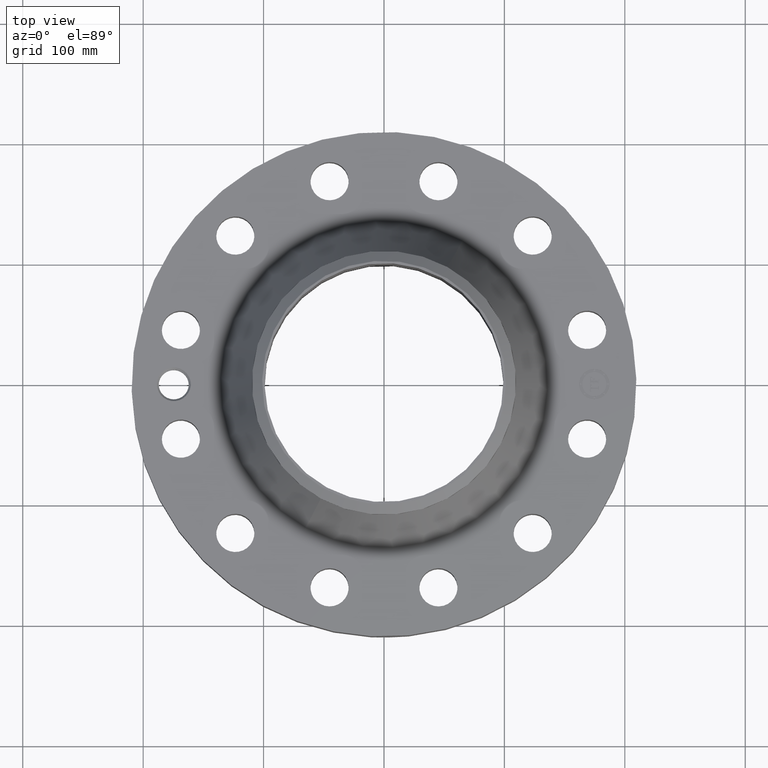
[diagram: clean part render]
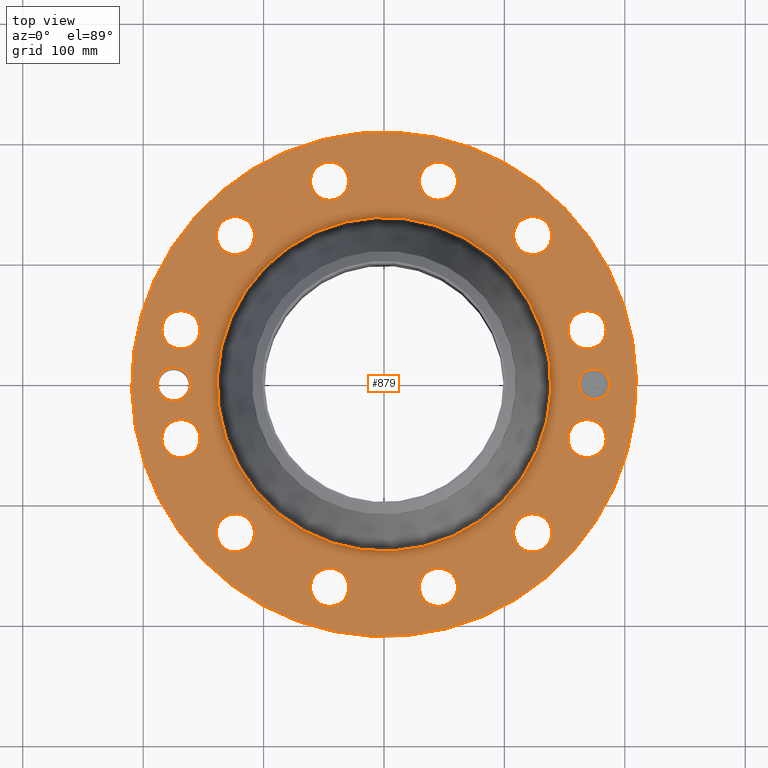
[diagram: same view with one face highlighted and labeled with its STEP entity id]
A machine part, top view. The second image highlights one B-rep face of the part: STEP entity #879.
In plain terms, the highlighted planar face has unit normal (0, 0, -1).
Its self-contained STEP definition (entity closure, byte-faithful):
#58=AXIS2_PLACEMENT_3D('Circle Axis2P3D',#56,#57,$) ;
#467=AXIS2_PLACEMENT_3D('Circle Axis2P3D',#465,#466,$) ;
#567=AXIS2_PLACEMENT_3D('Plane Axis2P3D',#564,#565,#566) ;
#603=AXIS2_PLACEMENT_3D('Circle Axis2P3D',#601,#602,$) ;
#610=AXIS2_PLACEMENT_3D('Circle Axis2P3D',#608,#609,$) ;
#617=AXIS2_PLACEMENT_3D('Circle Axis2P3D',#615,#616,$) ;
#629=AXIS2_PLACEMENT_3D('Circle Axis2P3D',#627,#628,$) ;
#638=AXIS2_PLACEMENT_3D('Circle Axis2P3D',#636,#637,$) ;
#647=AXIS2_PLACEMENT_3D('Circle Axis2P3D',#645,#646,$) ;
#656=AXIS2_PLACEMENT_3D('Circle Axis2P3D',#654,#655,$) ;
#665=AXIS2_PLACEMENT_3D('Circle Axis2P3D',#663,#664,$) ;
#674=AXIS2_PLACEMENT_3D('Circle Axis2P3D',#672,#673,$) ;
#683=AXIS2_PLACEMENT_3D('Circle Axis2P3D',#681,#682,$) ;
#692=AXIS2_PLACEMENT_3D('Circle Axis2P3D',#690,#691,$) ;
#701=AXIS2_PLACEMENT_3D('Circle Axis2P3D',#699,#700,$) ;
#710=AXIS2_PLACEMENT_3D('Circle Axis2P3D',#708,#709,$) ;
#719=AXIS2_PLACEMENT_3D('Circle Axis2P3D',#717,#718,$) ;
#728=AXIS2_PLACEMENT_3D('Circle Axis2P3D',#726,#727,$) ;
#737=AXIS2_PLACEMENT_3D('Circle Axis2P3D',#735,#736,$) ;
#746=AXIS2_PLACEMENT_3D('Circle Axis2P3D',#744,#745,$) ;
#755=AXIS2_PLACEMENT_3D('Circle Axis2P3D',#753,#754,$) ;
#764=AXIS2_PLACEMENT_3D('Circle Axis2P3D',#762,#763,$) ;
#773=AXIS2_PLACEMENT_3D('Circle Axis2P3D',#771,#772,$) ;
#782=AXIS2_PLACEMENT_3D('Circle Axis2P3D',#780,#781,$) ;
#791=AXIS2_PLACEMENT_3D('Circle Axis2P3D',#789,#790,$) ;
#800=AXIS2_PLACEMENT_3D('Circle Axis2P3D',#798,#799,$) ;
#809=AXIS2_PLACEMENT_3D('Circle Axis2P3D',#807,#808,$) ;
#818=AXIS2_PLACEMENT_3D('Circle Axis2P3D',#816,#817,$) ;
#827=AXIS2_PLACEMENT_3D('Circle Axis2P3D',#825,#826,$) ;
#836=AXIS2_PLACEMENT_3D('Circle Axis2P3D',#834,#835,$) ;
#845=AXIS2_PLACEMENT_3D('Circle Axis2P3D',#843,#844,$) ;
#854=AXIS2_PLACEMENT_3D('Circle Axis2P3D',#852,#853,$) ;
#863=AXIS2_PLACEMENT_3D('Circle Axis2P3D',#861,#862,$) ;
#872=AXIS2_PLACEMENT_3D('Circle Axis2P3D',#870,#871,$) ;
#53=CARTESIAN_POINT('Vertex',(-3.9552606935,-7.24005613562,2.44000000001)) ;
#56=CARTESIAN_POINT('Axis2P3D Location',(0.,0.,2.44000000001)) ;
#60=CARTESIAN_POINT('Vertex',(3.9552606935,7.24005613562,2.44000000001)) ;
#465=CARTESIAN_POINT('Axis2P3D Location',(0.,0.,2.44000000001)) ;
#564=CARTESIAN_POINT('Axis2P3D Location',(0.,8.25000000003,2.44000000001)) ;
#574=CARTESIAN_POINT('Control Point',(-6.31250000003,-1.1189649382E-015,2.44000000001)) ;
#575=CARTESIAN_POINT('Control Point',(-6.31446270719,0.048616390395,2.44000000001)) ;
#576=CARTESIAN_POINT('Control Point',(-6.32168226127,0.0969215371931,2.44000000001)) ;
#577=CARTESIAN_POINT('Control Point',(-6.3341161518,0.144151119014,2.44000000001)) ;
#578=CARTESIAN_POINT('Control Point',(-6.35232815676,0.191577658012,2.44000000001)) ;
#579=CARTESIAN_POINT('Control Point',(-6.37559968565,0.236272013065,2.44000000001)) ;
#580=CARTESIAN_POINT('Control Point',(-6.37660428159,0.238178625799,2.44000000001)) ;
#581=CARTESIAN_POINT('Control Point',(-6.37761806866,0.240080120487,2.44000000001)) ;
#582=CARTESIAN_POINT('Control Point',(-6.37864101342,0.241976437738,2.44000000001)) ;
#583=CARTESIAN_POINT('Vertex',(-6.31250000003,-1.1189649382E-015,2.44000000001)) ;
#585=CARTESIAN_POINT('Vertex',(-6.37864101342,0.241976437738,2.44000000001)) ;
#589=CARTESIAN_POINT('Control Point',(-6.31250000003,0.,2.44000000001)) ;
#590=CARTESIAN_POINT('Control Point',(-6.31446331456,-0.0486314346547,2.44000000001)) ;
#591=CARTESIAN_POINT('Control Point',(-6.32168673154,-0.0969514315158,2.44000000001)) ;
#592=CARTESIAN_POINT('Control Point',(-6.33411919269,-0.144176958435,2.44000000001)) ;
#593=CARTESIAN_POINT('Control Point',(-6.35234828049,-0.191651066436,2.44000000001)) ;
#594=CARTESIAN_POINT('Control Point',(-6.37563537741,-0.236369029658,2.44000000001)) ;
#595=CARTESIAN_POINT('Control Point',(-6.37667435536,-0.238339819045,2.44000000001)) ;
#596=CARTESIAN_POINT('Control Point',(-6.37772313855,-0.240305093957,2.44000000001)) ;
#597=CARTESIAN_POINT('Control Point',(-6.37878168927,-0.242264789176,2.44000000001)) ;
#598=CARTESIAN_POINT('Vertex',(-6.37878168927,-0.242264789176,2.44000000001)) ;
#601=CARTESIAN_POINT('Axis2P3D Location',(-6.87500000003,1.1189649382E-015,2.44000000001)) ;
#605=CARTESIAN_POINT('Vertex',(-6.39039890935,-0.264738782418,2.44000000001)) ;
#608=CARTESIAN_POINT('Axis2P3D Location',(-6.87500000003,1.1189649382E-015,2.44000000001)) ;
#612=CARTESIAN_POINT('Vertex',(-7.35960109071,0.264738782418,2.44000000001)) ;
#615=CARTESIAN_POINT('Axis2P3D Location',(-6.87500000003,1.1189649382E-015,2.44000000001)) ;
#627=CARTESIAN_POINT('Axis2P3D Location',(6.64074005576,-1.77938093509,2.44000000001)) ;
#631=CARTESIAN_POINT('Vertex',(6.09225095458,-1.47973997346,2.44000000001)) ;
#633=CARTESIAN_POINT('Vertex',(7.18922915695,-2.07902189672,2.44000000001)) ;
#636=CARTESIAN_POINT('Axis2P3D Location',(6.64074005576,-1.77938093509,2.44000000001)) ;
#645=CARTESIAN_POINT('Axis2P3D Location',(0.,0.,2.44000000001)) ;
#649=CARTESIAN_POINT('Vertex',(-2.6154202133,-4.78749458756,2.44000000001)) ;
#651=CARTESIAN_POINT('Vertex',(2.6154202133,4.78749458756,2.44000000001)) ;
#654=CARTESIAN_POINT('Axis2P3D Location',(0.,0.,2.44000000001)) ;
#663=CARTESIAN_POINT('Axis2P3D Location',(4.86135912068,-4.86135912068,2.44000000001)) ;
#667=CARTESIAN_POINT('Vertex',(5.18654413519,-5.39510035605,2.44000000001)) ;
#669=CARTESIAN_POINT('Vertex',(4.53617410617,-4.3276178853,2.44000000001)) ;
#672=CARTESIAN_POINT('Axis2P3D Location',(4.86135912068,-4.86135912068,2.44000000001)) ;
#681=CARTESIAN_POINT('Axis2P3D Location',(1.77938093509,-6.64074005576,2.44000000001)) ;
#685=CARTESIAN_POINT('Vertex',(1.79412880089,-7.2655660319,2.44000000001)) ;
#687=CARTESIAN_POINT('Vertex',(1.76463306928,-6.01591407963,2.44000000001)) ;
#690=CARTESIAN_POINT('Axis2P3D Location',(1.77938093509,-6.64074005576,2.44000000001)) ;
#699=CARTESIAN_POINT('Axis2P3D Location',(-1.77938093509,-6.64074005576,2.44000000001)) ;
#703=CARTESIAN_POINT('Vertex',(-2.07902189672,-7.18922915695,2.44000000001)) ;
#705=CARTESIAN_POINT('Vertex',(-1.47973997346,-6.09225095458,2.44000000001)) ;
#708=CARTESIAN_POINT('Axis2P3D Location',(-1.77938093509,-6.64074005576,2.44000000001)) ;
#717=CARTESIAN_POINT('Axis2P3D Location',(-4.86135912068,-4.86135912068,2.44000000001)) ;
#721=CARTESIAN_POINT('Vertex',(-5.39510035605,-5.18654413519,2.44000000001)) ;
#723=CARTESIAN_POINT('Vertex',(-4.3276178853,-4.53617410617,2.44000000001)) ;
#726=CARTESIAN_POINT('Axis2P3D Location',(-4.86135912068,-4.86135912068,2.44000000001)) ;
#735=CARTESIAN_POINT('Axis2P3D Location',(-6.64074005576,-1.77938093509,2.44000000001)) ;
#739=CARTESIAN_POINT('Vertex',(-7.2655660319,-1.79412880089,2.44000000001)) ;
#741=CARTESIAN_POINT('Vertex',(-6.01591407963,-1.76463306928,2.44000000001)) ;
#744=CARTESIAN_POINT('Axis2P3D Location',(-6.64074005576,-1.77938093509,2.44000000001)) ;
#753=CARTESIAN_POINT('Axis2P3D Location',(-6.64074005576,1.77938093509,2.44000000001)) ;
#757=CARTESIAN_POINT('Vertex',(-7.18922915695,2.07902189672,2.44000000001)) ;
#759=CARTESIAN_POINT('Vertex',(-6.09225095458,1.47973997346,2.44000000001)) ;
#762=CARTESIAN_POINT('Axis2P3D Location',(-6.64074005576,1.77938093509,2.44000000001)) ;
#771=CARTESIAN_POINT('Axis2P3D Location',(-4.86135912068,4.86135912068,2.44000000001)) ;
#775=CARTESIAN_POINT('Vertex',(-5.18654413519,5.39510035605,2.44000000001)) ;
#777=CARTESIAN_POINT('Vertex',(-4.53617410617,4.3276178853,2.44000000001)) ;
#780=CARTESIAN_POINT('Axis2P3D Location',(-4.86135912068,4.86135912068,2.44000000001)) ;
#789=CARTESIAN_POINT('Axis2P3D Location',(-1.77938093509,6.64074005576,2.44000000001)) ;
#793=CARTESIAN_POINT('Vertex',(-1.79412880089,7.2655660319,2.44000000001)) ;
#795=CARTESIAN_POINT('Vertex',(-1.76463306928,6.01591407963,2.44000000001)) ;
#798=CARTESIAN_POINT('Axis2P3D Location',(-1.77938093509,6.64074005576,2.44000000001)) ;
#807=CARTESIAN_POINT('Axis2P3D Location',(1.77938093509,6.64074005576,2.44000000001)) ;
#811=CARTESIAN_POINT('Vertex',(2.07902189672,7.18922915695,2.44000000001)) ;
#813=CARTESIAN_POINT('Vertex',(1.47973997346,6.09225095458,2.44000000001)) ;
#816=CARTESIAN_POINT('Axis2P3D Location',(1.77938093509,6.64074005576,2.44000000001)) ;
#825=CARTESIAN_POINT('Axis2P3D Location',(4.86135912068,4.86135912068,2.44000000001)) ;
#829=CARTESIAN_POINT('Vertex',(5.39510035605,5.18654413519,2.44000000001)) ;
#831=CARTESIAN_POINT('Vertex',(4.3276178853,4.53617410617,2.44000000001)) ;
#834=CARTESIAN_POINT('Axis2P3D Location',(4.86135912068,4.86135912068,2.44000000001)) ;
#843=CARTESIAN_POINT('Axis2P3D Location',(6.64074005576,1.77938093509,2.44000000001)) ;
#847=CARTESIAN_POINT('Vertex',(7.2655660319,1.79412880089,2.44000000001)) ;
#849=CARTESIAN_POINT('Vertex',(6.01591407963,1.76463306928,2.44000000001)) ;
#852=CARTESIAN_POINT('Axis2P3D Location',(6.64074005576,1.77938093509,2.44000000001)) ;
#861=CARTESIAN_POINT('Axis2P3D Location',(6.87500000003,0.,2.44000000001)) ;
#865=CARTESIAN_POINT('Vertex',(6.87500000003,0.499999995002,2.44000000001)) ;
#867=CARTESIAN_POINT('Vertex',(6.87500000003,-0.499999995002,2.44000000001)) ;
#870=CARTESIAN_POINT('Axis2P3D Location',(6.87500000003,0.,2.44000000001)) ;
#57=DIRECTION('Axis2P3D Direction',(0.,0.,-0.0393700787402)) ;
#466=DIRECTION('Axis2P3D Direction',(0.,0.,-0.0393700787402)) ;
#565=DIRECTION('Axis2P3D Direction',(0.,0.,-0.0393700787402)) ;
#566=DIRECTION('Axis2P3D XDirection',(0.0393700787402,0.,0.)) ;
#602=DIRECTION('Axis2P3D Direction',(0.,0.,-0.0393700787402)) ;
#609=DIRECTION('Axis2P3D Direction',(0.,0.,-0.0393700787402)) ;
#616=DIRECTION('Axis2P3D Direction',(0.,0.,-0.0393700787402)) ;
#628=DIRECTION('Axis2P3D Direction',(0.,0.,-0.0393700787402)) ;
#637=DIRECTION('Axis2P3D Direction',(0.,0.,-0.0393700787402)) ;
#646=DIRECTION('Axis2P3D Direction',(0.,0.,-0.0393700787402)) ;
#655=DIRECTION('Axis2P3D Direction',(0.,0.,-0.0393700787402)) ;
#664=DIRECTION('Axis2P3D Direction',(0.,0.,-0.0393700787402)) ;
#673=DIRECTION('Axis2P3D Direction',(0.,0.,-0.0393700787402)) ;
#682=DIRECTION('Axis2P3D Direction',(0.,0.,-0.0393700787402)) ;
#691=DIRECTION('Axis2P3D Direction',(0.,0.,-0.0393700787402)) ;
#700=DIRECTION('Axis2P3D Direction',(0.,0.,-0.0393700787402)) ;
#709=DIRECTION('Axis2P3D Direction',(0.,0.,-0.0393700787402)) ;
#718=DIRECTION('Axis2P3D Direction',(0.,0.,-0.0393700787402)) ;
#727=DIRECTION('Axis2P3D Direction',(0.,0.,-0.0393700787402)) ;
#736=DIRECTION('Axis2P3D Direction',(0.,0.,-0.0393700787402)) ;
#745=DIRECTION('Axis2P3D Direction',(0.,0.,-0.0393700787402)) ;
#754=DIRECTION('Axis2P3D Direction',(0.,0.,-0.0393700787402)) ;
#763=DIRECTION('Axis2P3D Direction',(0.,0.,-0.0393700787402)) ;
#772=DIRECTION('Axis2P3D Direction',(0.,0.,-0.0393700787402)) ;
#781=DIRECTION('Axis2P3D Direction',(0.,0.,-0.0393700787402)) ;
#790=DIRECTION('Axis2P3D Direction',(0.,0.,-0.0393700787402)) ;
#799=DIRECTION('Axis2P3D Direction',(0.,0.,-0.0393700787402)) ;
#808=DIRECTION('Axis2P3D Direction',(0.,0.,-0.0393700787402)) ;
#817=DIRECTION('Axis2P3D Direction',(0.,0.,-0.0393700787402)) ;
#826=DIRECTION('Axis2P3D Direction',(0.,0.,-0.0393700787402)) ;
#835=DIRECTION('Axis2P3D Direction',(0.,0.,-0.0393700787402)) ;
#844=DIRECTION('Axis2P3D Direction',(0.,0.,-0.0393700787402)) ;
#853=DIRECTION('Axis2P3D Direction',(0.,0.,-0.0393700787402)) ;
#862=DIRECTION('Axis2P3D Direction',(0.,0.,-0.0393700787402)) ;
#871=DIRECTION('Axis2P3D Direction',(0.,0.,-0.0393700787402)) ;
#570=ORIENTED_EDGE('',*,*,#469,.F.) ;
#571=ORIENTED_EDGE('',*,*,#62,.F.) ;
#621=ORIENTED_EDGE('',*,*,#587,.F.) ;
#622=ORIENTED_EDGE('',*,*,#600,.T.) ;
#623=ORIENTED_EDGE('',*,*,#607,.T.) ;
#624=ORIENTED_EDGE('',*,*,#614,.T.) ;
#625=ORIENTED_EDGE('',*,*,#619,.T.) ;
#642=ORIENTED_EDGE('',*,*,#635,.T.) ;
#643=ORIENTED_EDGE('',*,*,#640,.T.) ;
#660=ORIENTED_EDGE('',*,*,#653,.T.) ;
#661=ORIENTED_EDGE('',*,*,#658,.T.) ;
#678=ORIENTED_EDGE('',*,*,#671,.T.) ;
#679=ORIENTED_EDGE('',*,*,#676,.T.) ;
#696=ORIENTED_EDGE('',*,*,#689,.T.) ;
#697=ORIENTED_EDGE('',*,*,#694,.T.) ;
#714=ORIENTED_EDGE('',*,*,#707,.T.) ;
#715=ORIENTED_EDGE('',*,*,#712,.T.) ;
#732=ORIENTED_EDGE('',*,*,#725,.T.) ;
#733=ORIENTED_EDGE('',*,*,#730,.T.) ;
#750=ORIENTED_EDGE('',*,*,#743,.T.) ;
#751=ORIENTED_EDGE('',*,*,#748,.T.) ;
#768=ORIENTED_EDGE('',*,*,#761,.T.) ;
#769=ORIENTED_EDGE('',*,*,#766,.T.) ;
#786=ORIENTED_EDGE('',*,*,#779,.T.) ;
#787=ORIENTED_EDGE('',*,*,#784,.T.) ;
#804=ORIENTED_EDGE('',*,*,#797,.T.) ;
#805=ORIENTED_EDGE('',*,*,#802,.T.) ;
#822=ORIENTED_EDGE('',*,*,#815,.T.) ;
#823=ORIENTED_EDGE('',*,*,#820,.T.) ;
#840=ORIENTED_EDGE('',*,*,#833,.T.) ;
#841=ORIENTED_EDGE('',*,*,#838,.T.) ;
#858=ORIENTED_EDGE('',*,*,#851,.T.) ;
#859=ORIENTED_EDGE('',*,*,#856,.T.) ;
#876=ORIENTED_EDGE('',*,*,#869,.T.) ;
#877=ORIENTED_EDGE('',*,*,#874,.T.) ;
#626=FACE_BOUND('',#620,.T.) ;
#644=FACE_BOUND('',#641,.T.) ;
#662=FACE_BOUND('',#659,.T.) ;
#680=FACE_BOUND('',#677,.T.) ;
#698=FACE_BOUND('',#695,.T.) ;
#716=FACE_BOUND('',#713,.T.) ;
#734=FACE_BOUND('',#731,.T.) ;
#752=FACE_BOUND('',#749,.T.) ;
#770=FACE_BOUND('',#767,.T.) ;
#788=FACE_BOUND('',#785,.T.) ;
#806=FACE_BOUND('',#803,.T.) ;
#824=FACE_BOUND('',#821,.T.) ;
#842=FACE_BOUND('',#839,.T.) ;
#860=FACE_BOUND('',#857,.T.) ;
#878=FACE_BOUND('',#875,.T.) ;
#879=ADVANCED_FACE('PartBody',(#572,#626,#644,#662,#680,#698,#716,#734,#752,#770,#788,#806,#824,#842,#860,#878),#568,.F.) ;
#573=B_SPLINE_CURVE_WITH_KNOTS('',5,(#574,#575,#576,#577,#578,#579,#580,#581,#582),.UNSPECIFIED.,.F.,.U.,(6,3,6),(0.,8.47636529083,8.85511718374),.UNSPECIFIED.) ;
#588=B_SPLINE_CURVE_WITH_KNOTS('',5,(#589,#590,#591,#592,#593,#594,#595,#596,#597),.UNSPECIFIED.,.F.,.U.,(6,3,6),(0.,8.47898828779,8.87102911164),.UNSPECIFIED.) ;
#59=CIRCLE('generated circle',#58,8.25000000003) ;
#468=CIRCLE('generated circle',#467,8.25000000003) ;
#604=CIRCLE('generated circle',#603,0.552200000002) ;
#611=CIRCLE('generated circle',#610,0.552200000002) ;
#618=CIRCLE('generated circle',#617,0.552200000002) ;
#630=CIRCLE('generated circle',#629,0.625000000002) ;
#639=CIRCLE('generated circle',#638,0.625000000002) ;
#648=CIRCLE('generated circle',#647,5.45532100962) ;
#657=CIRCLE('generated circle',#656,5.45532100962) ;
#666=CIRCLE('generated circle',#665,0.625000000003) ;
#675=CIRCLE('generated circle',#674,0.625000000003) ;
#684=CIRCLE('generated circle',#683,0.625000000003) ;
#693=CIRCLE('generated circle',#692,0.625000000003) ;
#702=CIRCLE('generated circle',#701,0.625000000002) ;
#711=CIRCLE('generated circle',#710,0.625000000002) ;
#720=CIRCLE('generated circle',#719,0.625000000003) ;
#729=CIRCLE('generated circle',#728,0.625000000003) ;
#738=CIRCLE('generated circle',#737,0.625000000003) ;
#747=CIRCLE('generated circle',#746,0.625000000003) ;
#756=CIRCLE('generated circle',#755,0.625000000002) ;
#765=CIRCLE('generated circle',#764,0.625000000002) ;
#774=CIRCLE('generated circle',#773,0.625000000003) ;
#783=CIRCLE('generated circle',#782,0.625000000003) ;
#792=CIRCLE('generated circle',#791,0.625000000003) ;
#801=CIRCLE('generated circle',#800,0.625000000003) ;
#810=CIRCLE('generated circle',#809,0.625000000002) ;
#819=CIRCLE('generated circle',#818,0.625000000002) ;
#828=CIRCLE('generated circle',#827,0.625000000003) ;
#837=CIRCLE('generated circle',#836,0.625000000003) ;
#846=CIRCLE('generated circle',#845,0.625000000003) ;
#855=CIRCLE('generated circle',#854,0.625000000003) ;
#864=CIRCLE('generated circle',#863,0.499999995002) ;
#873=CIRCLE('generated circle',#872,0.499999995002) ;
#62=EDGE_CURVE('',#54,#61,#59,.T.) ;
#469=EDGE_CURVE('',#61,#54,#468,.T.) ;
#587=EDGE_CURVE('',#584,#586,#573,.T.) ;
#600=EDGE_CURVE('',#584,#599,#588,.T.) ;
#607=EDGE_CURVE('',#599,#606,#604,.T.) ;
#614=EDGE_CURVE('',#606,#613,#611,.T.) ;
#619=EDGE_CURVE('',#613,#586,#618,.T.) ;
#635=EDGE_CURVE('',#632,#634,#630,.T.) ;
#640=EDGE_CURVE('',#634,#632,#639,.T.) ;
#653=EDGE_CURVE('',#650,#652,#648,.T.) ;
#658=EDGE_CURVE('',#652,#650,#657,.T.) ;
#671=EDGE_CURVE('',#668,#670,#666,.T.) ;
#676=EDGE_CURVE('',#670,#668,#675,.T.) ;
#689=EDGE_CURVE('',#686,#688,#684,.T.) ;
#694=EDGE_CURVE('',#688,#686,#693,.T.) ;
#707=EDGE_CURVE('',#704,#706,#702,.T.) ;
#712=EDGE_CURVE('',#706,#704,#711,.T.) ;
#725=EDGE_CURVE('',#722,#724,#720,.T.) ;
#730=EDGE_CURVE('',#724,#722,#729,.T.) ;
#743=EDGE_CURVE('',#740,#742,#738,.T.) ;
#748=EDGE_CURVE('',#742,#740,#747,.T.) ;
#761=EDGE_CURVE('',#758,#760,#756,.T.) ;
#766=EDGE_CURVE('',#760,#758,#765,.T.) ;
#779=EDGE_CURVE('',#776,#778,#774,.T.) ;
#784=EDGE_CURVE('',#778,#776,#783,.T.) ;
#797=EDGE_CURVE('',#794,#796,#792,.T.) ;
#802=EDGE_CURVE('',#796,#794,#801,.T.) ;
#815=EDGE_CURVE('',#812,#814,#810,.T.) ;
#820=EDGE_CURVE('',#814,#812,#819,.T.) ;
#833=EDGE_CURVE('',#830,#832,#828,.T.) ;
#838=EDGE_CURVE('',#832,#830,#837,.T.) ;
#851=EDGE_CURVE('',#848,#850,#846,.T.) ;
#856=EDGE_CURVE('',#850,#848,#855,.T.) ;
#869=EDGE_CURVE('',#866,#868,#864,.T.) ;
#874=EDGE_CURVE('',#868,#866,#873,.T.) ;
#569=EDGE_LOOP('',(#570,#571)) ;
#620=EDGE_LOOP('',(#621,#622,#623,#624,#625)) ;
#641=EDGE_LOOP('',(#642,#643)) ;
#659=EDGE_LOOP('',(#660,#661)) ;
#677=EDGE_LOOP('',(#678,#679)) ;
#695=EDGE_LOOP('',(#696,#697)) ;
#713=EDGE_LOOP('',(#714,#715)) ;
#731=EDGE_LOOP('',(#732,#733)) ;
#749=EDGE_LOOP('',(#750,#751)) ;
#767=EDGE_LOOP('',(#768,#769)) ;
#785=EDGE_LOOP('',(#786,#787)) ;
#803=EDGE_LOOP('',(#804,#805)) ;
#821=EDGE_LOOP('',(#822,#823)) ;
#839=EDGE_LOOP('',(#840,#841)) ;
#857=EDGE_LOOP('',(#858,#859)) ;
#875=EDGE_LOOP('',(#876,#877)) ;
#572=FACE_OUTER_BOUND('',#569,.T.) ;
#568=PLANE('',#567) ;
#54=VERTEX_POINT('',#53) ;
#61=VERTEX_POINT('',#60) ;
#584=VERTEX_POINT('',#583) ;
#586=VERTEX_POINT('',#585) ;
#599=VERTEX_POINT('',#598) ;
#606=VERTEX_POINT('',#605) ;
#613=VERTEX_POINT('',#612) ;
#632=VERTEX_POINT('',#631) ;
#634=VERTEX_POINT('',#633) ;
#650=VERTEX_POINT('',#649) ;
#652=VERTEX_POINT('',#651) ;
#668=VERTEX_POINT('',#667) ;
#670=VERTEX_POINT('',#669) ;
#686=VERTEX_POINT('',#685) ;
#688=VERTEX_POINT('',#687) ;
#704=VERTEX_POINT('',#703) ;
#706=VERTEX_POINT('',#705) ;
#722=VERTEX_POINT('',#721) ;
#724=VERTEX_POINT('',#723) ;
#740=VERTEX_POINT('',#739) ;
#742=VERTEX_POINT('',#741) ;
#758=VERTEX_POINT('',#757) ;
#760=VERTEX_POINT('',#759) ;
#776=VERTEX_POINT('',#775) ;
#778=VERTEX_POINT('',#777) ;
#794=VERTEX_POINT('',#793) ;
#796=VERTEX_POINT('',#795) ;
#812=VERTEX_POINT('',#811) ;
#814=VERTEX_POINT('',#813) ;
#830=VERTEX_POINT('',#829) ;
#832=VERTEX_POINT('',#831) ;
#848=VERTEX_POINT('',#847) ;
#850=VERTEX_POINT('',#849) ;
#866=VERTEX_POINT('',#865) ;
#868=VERTEX_POINT('',#867) ;